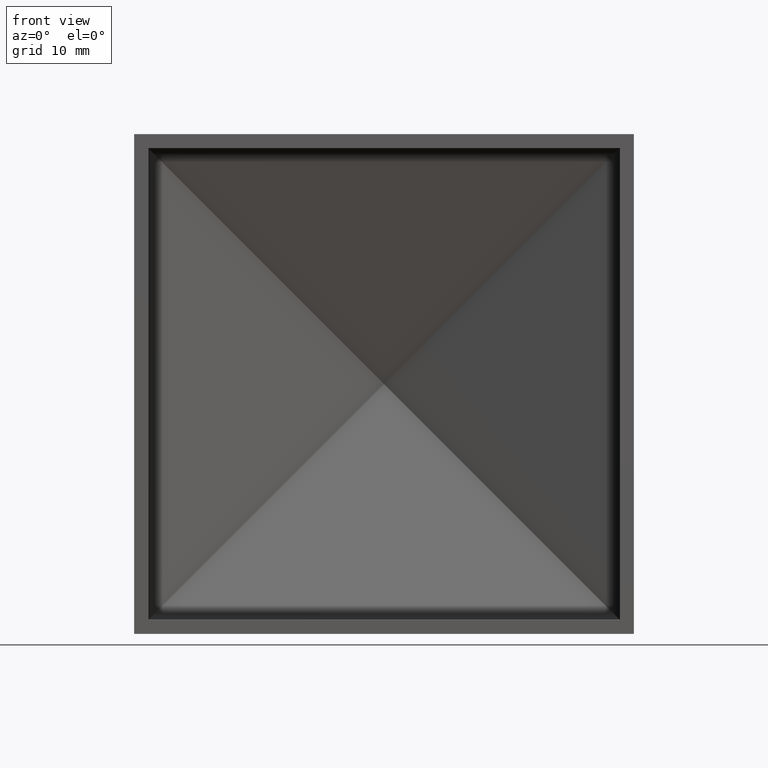
[diagram: clean part render]
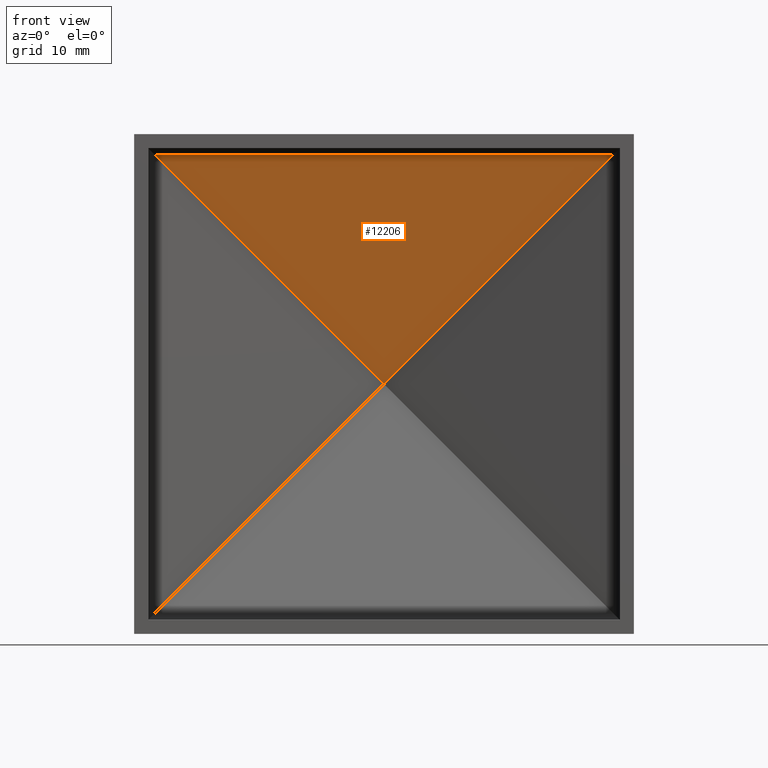
[diagram: same view with one face highlighted and labeled with its STEP entity id]
A machine part, front view. The second image highlights one B-rep face of the part: STEP entity #12206.
In plain terms, the highlighted planar face has unit normal (0, 0.9355, 0.3533).
Its self-contained STEP definition (entity closure, byte-faithful):
#676 = DIRECTION ( 'NONE',  ( 1.568834972512814600E-016, 0.9355213224080032300, 0.3532702298807258200 ) ) ;
#989 = EDGE_CURVE ( 'NONE', #8884, #4977, #10096, .T. ) ;
#1977 = VECTOR ( 'NONE', #7176, 1000.000000000000100 ) ;
#2234 = LINE ( 'NONE', #7997, #10689 ) ;
#2371 = CARTESIAN_POINT ( 'NONE',  ( 3.469446951953614200E-015, 18.40350818686158600, 3.903127820947816000E-015 ) ) ;
#2609 = PLANE ( 'NONE',  #8660 ) ;
#3226 = VERTEX_POINT ( 'NONE', #11307 ) ;
#4264 = CARTESIAN_POINT ( 'NONE',  ( -0.6188493527757368300, 18.16981917531249700, 0.6188493527757438200 ) ) ;
#4655 = CARTESIAN_POINT ( 'NONE',  ( -24.35327022988072100, 9.207260954021606400, 24.35327022988074200 ) ) ;
#4665 = CARTESIAN_POINT ( 'NONE',  ( -26.50000000000002100, 18.59027014862880000, -0.4945783218330039900 ) ) ;
#4977 = VERTEX_POINT ( 'NONE', #4655 ) ;
#5243 = ORIENTED_EDGE ( 'NONE', *, *, #7180, .F. ) ;
#6564 = VECTOR ( 'NONE', #9187, 1000.000000000000000 ) ;
#7176 = DIRECTION ( 'NONE',  ( -0.6831717138704593900, -0.2579783299709449400, 0.6831717138704598300 ) ) ;
#7180 = EDGE_CURVE ( 'NONE', #3226, #8884, #2234, .T. ) ;
#7753 = DIRECTION ( 'NONE',  ( 0.0000000000000000000, -0.3532702298807258200, 0.9355213224080032300 ) ) ;
#7997 = CARTESIAN_POINT ( 'NONE',  ( -12.63192210338459300, 23.17355662767296900, -12.63192210338458600 ) ) ;
#8660 = AXIS2_PLACEMENT_3D ( 'NONE', #4665, #676, #7753 ) ;
#8884 = VERTEX_POINT ( 'NONE', #2371 ) ;
#9128 = ORIENTED_EDGE ( 'NONE', *, *, #9988, .F. ) ;
#9187 = DIRECTION ( 'NONE',  ( 1.000000000000000000, -1.467678568125111800E-016, -5.542226913845241600E-017 ) ) ;
#9432 = LINE ( 'NONE', #11188, #6564 ) ;
#9988 = EDGE_CURVE ( 'NONE', #4977, #3226, #9432, .T. ) ;
#10096 = LINE ( 'NONE', #4264, #1977 ) ;
#10605 = FACE_OUTER_BOUND ( 'NONE', #12813, .T. ) ;
#10689 = VECTOR ( 'NONE', #13073, 1000.000000000000100 ) ;
#11188 = CARTESIAN_POINT ( 'NONE',  ( -26.50000000000002100, 9.207260954021606400, 24.35327022988073900 ) ) ;
#11307 = CARTESIAN_POINT ( 'NONE',  ( 24.35327022988073200, 9.207260954021602800, 24.35327022988072800 ) ) ;
#11431 = ORIENTED_EDGE ( 'NONE', *, *, #989, .F. ) ;
#12206 = ADVANCED_FACE ( 'NONE', ( #10605 ), #2609, .F. ) ;
#12813 = EDGE_LOOP ( 'NONE', ( #5243, #9128, #11431 ) ) ;
#13073 = DIRECTION ( 'NONE',  ( -0.6831717138704596100, 0.2579783299709450500, -0.6831717138704593900 ) ) ;